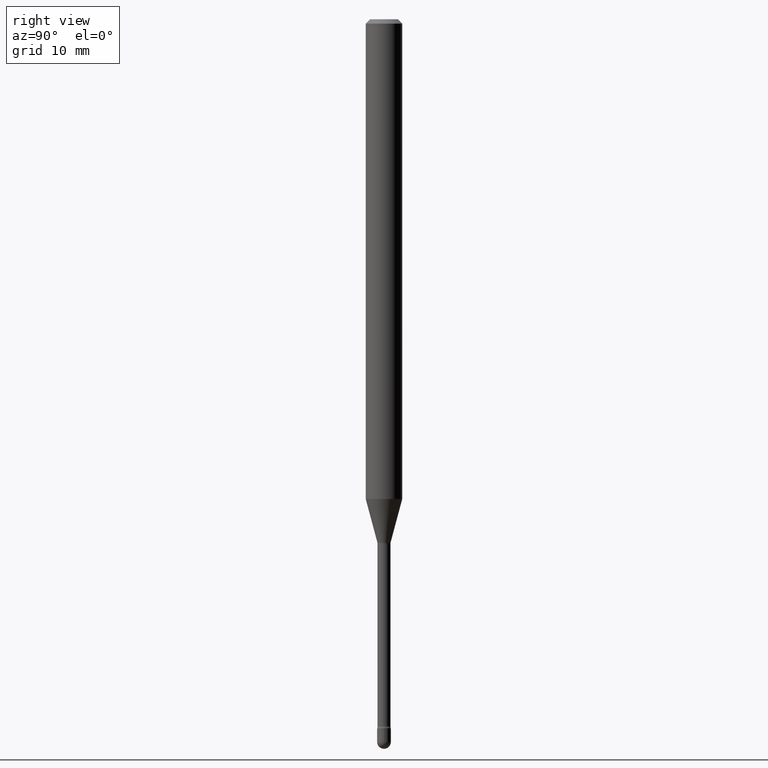
[diagram: clean part render]
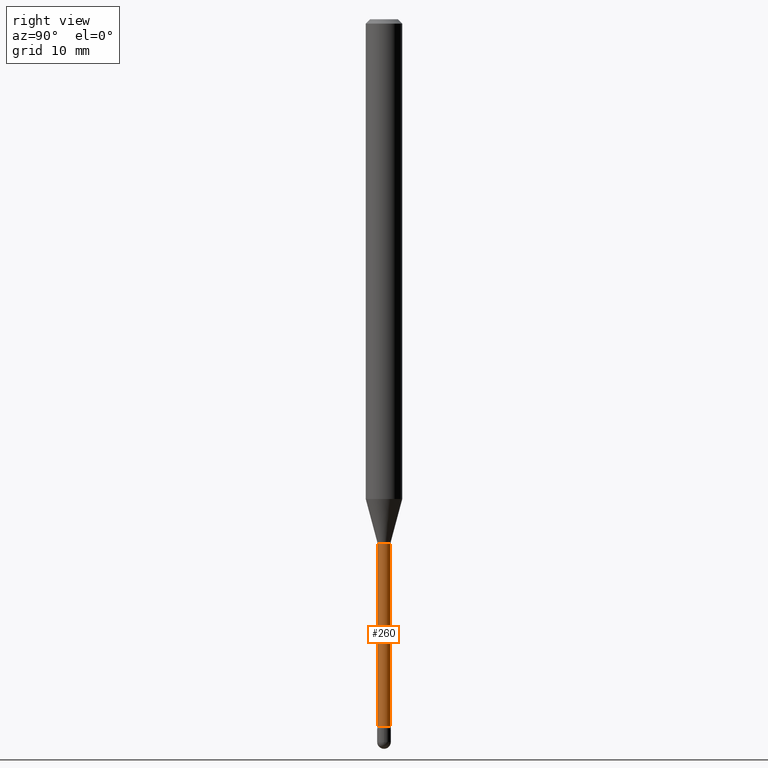
[diagram: same view with one face highlighted and labeled with its STEP entity id]
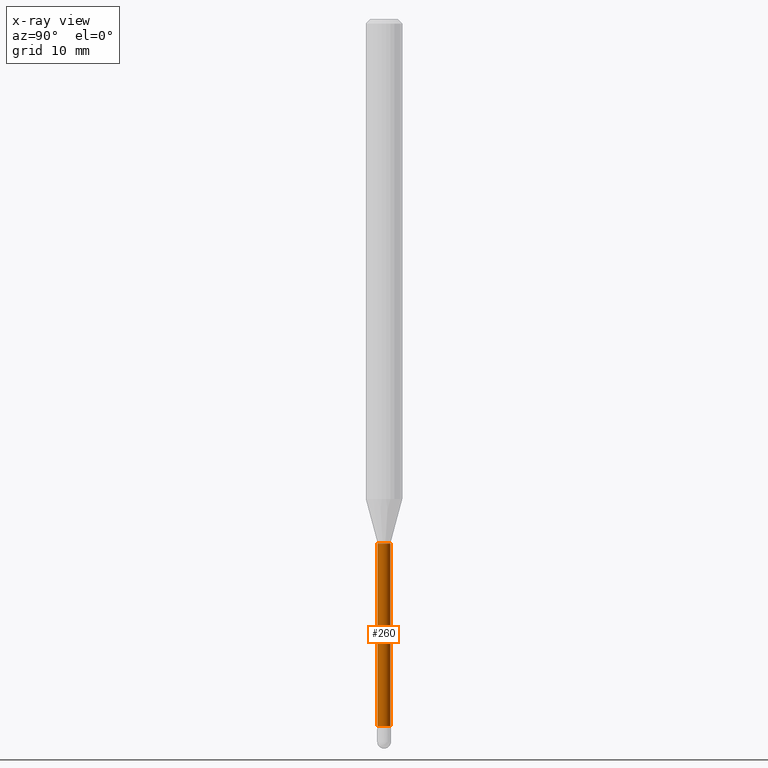
[diagram: x-ray of the same camera — body ghosted, the highlighted face saturated]
A machine part, right view. The second image highlights one B-rep face of the part: STEP entity #260.
The next image is the same camera in x-ray: the body ghosted, the highlighted face saturated — about 0% of this face is hidden behind the body in this view.
In plain terms, the highlighted cylindrical surface (edge-blend (fillet) strip) has radius 0.5613 mm, axis along (-0, 0, 1).
Its self-contained STEP definition (entity closure, byte-faithful):
#17 = FACE_OUTER_BOUND ( 'NONE', #524, .T. ) ;
#19 = DIRECTION ( 'NONE',  ( -2.445456806742390166E-29, 3.491498522728124281E-15, 1.000000000000000000 ) ) ;
#25 = AXIS2_PLACEMENT_3D ( 'NONE', #216, #503, #200 ) ;
#36 = CARTESIAN_POINT ( 'NONE',  ( 1.570299446029823742E-16, 0.02210000000000003628, 4.009112815389543820E-16 ) ) ;
#41 = DIRECTION ( 'NONE',  ( -2.445456806742389886E-29, 3.491498522728124281E-15, 1.000000000000000000 ) ) ;
#57 = CARTESIAN_POINT ( 'NONE',  ( -1.169113584055446105E-44, 1.669184350826100908E-30, 4.780733988912460139E-16 ) ) ;
#77 = CARTESIAN_POINT ( 'NONE',  ( 1.620037437533623579E-16, 0.02209999999999160900, -2.422672283192177645 ) ) ;
#81 = CARTESIAN_POINT ( 'NONE',  ( 1.570299446030415881E-16, 0.02209999999999372536, -1.796974787463811118 ) ) ;
#140 = DIRECTION ( 'NONE',  ( -2.445456806742390166E-29, 3.491498522728124281E-15, 1.000000000000000000 ) ) ;
#141 = ORIENTED_EDGE ( 'NONE', *, *, #562, .T. ) ;
#158 = EDGE_CURVE ( 'NONE', #265, #365, #271, .T. ) ;
#164 = AXIS2_PLACEMENT_3D ( 'NONE', #355, #140, #357 ) ;
#177 = DIRECTION ( 'NONE',  ( -2.445456806742389886E-29, 3.491498522728124281E-15, 1.000000000000000000 ) ) ;
#200 = DIRECTION ( 'NONE',  ( -6.982962677686265922E-15, -1.000000000000000000, 0.000000000000000000 ) ) ;
#203 = AXIS2_PLACEMENT_3D ( 'NONE', #57, #19, #535 ) ;
#216 = CARTESIAN_POINT ( 'NONE',  ( 4.394424225547836862E-29, -6.274134815809582677E-15, -1.796974787463811118 ) ) ;
#228 = EDGE_CURVE ( 'NONE', #265, #525, #296, .T. ) ;
#239 = CYLINDRICAL_SURFACE ( 'NONE', #203, 0.02210000000000003628 ) ;
#260 = ADVANCED_FACE ( 'NONE', ( #17 ), #239, .T. ) ;
#265 = VERTEX_POINT ( 'NONE', #322 ) ;
#271 = LINE ( 'NONE', #492, #393 ) ;
#287 = ORIENTED_EDGE ( 'NONE', *, *, #228, .T. ) ;
#296 = CIRCLE ( 'NONE', #164, 0.02210000000000007098 ) ;
#322 = CARTESIAN_POINT ( 'NONE',  ( -1.543234751768077413E-16, -0.02210000000000852949, -2.422672283192177645 ) ) ;
#350 = CIRCLE ( 'NONE', #25, 0.02210000000000000159 ) ;
#355 = CARTESIAN_POINT ( 'NONE',  ( 5.924540425438438156E-29, -8.458756697819860632E-15, -2.422672283192177645 ) ) ;
#357 = DIRECTION ( 'NONE',  ( -6.982962677686265133E-15, -1.000000000000000000, 0.000000000000000000 ) ) ;
#365 = VERTEX_POINT ( 'NONE', #501 ) ;
#393 = VECTOR ( 'NONE', #41, 39.37007874015748143 ) ;
#432 = LINE ( 'NONE', #36, #497 ) ;
#454 = ORIENTED_EDGE ( 'NONE', *, *, #473, .F. ) ;
#461 = ORIENTED_EDGE ( 'NONE', *, *, #158, .F. ) ;
#473 = EDGE_CURVE ( 'NONE', #365, #561, #350, .T. ) ;
#492 = CARTESIAN_POINT ( 'NONE',  ( -1.543234751768667333E-16, -0.02210000000000003628, 5.552355162435376952E-16 ) ) ;
#497 = VECTOR ( 'NONE', #177, 39.37007874015748143 ) ;
#501 = CARTESIAN_POINT ( 'NONE',  ( -1.543234751768225325E-16, -0.02210000000000627435, -1.796974787463811118 ) ) ;
#503 = DIRECTION ( 'NONE',  ( -2.445456806742390166E-29, 3.491498522728124281E-15, 1.000000000000000000 ) ) ;
#524 = EDGE_LOOP ( 'NONE', ( #287, #141, #454, #461 ) ) ;
#525 = VERTEX_POINT ( 'NONE', #77 ) ;
#535 = DIRECTION ( 'NONE',  ( -6.982962677686265922E-15, -1.000000000000000000, 3.491498522728123492E-15 ) ) ;
#561 = VERTEX_POINT ( 'NONE', #81 ) ;
#562 = EDGE_CURVE ( 'NONE', #525, #561, #432, .T. ) ;